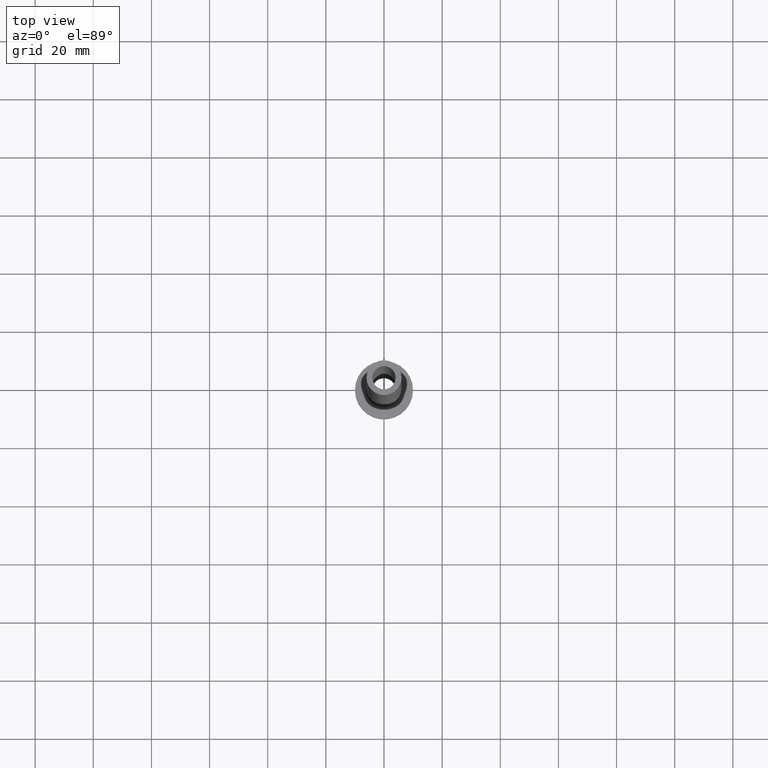
[diagram: clean part render]
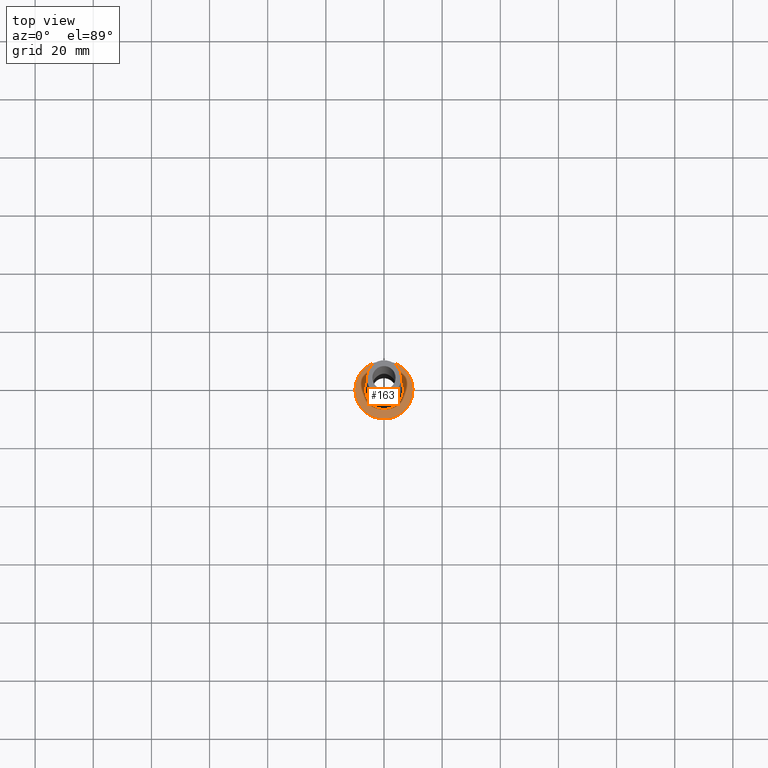
[diagram: same view with one face highlighted and labeled with its STEP entity id]
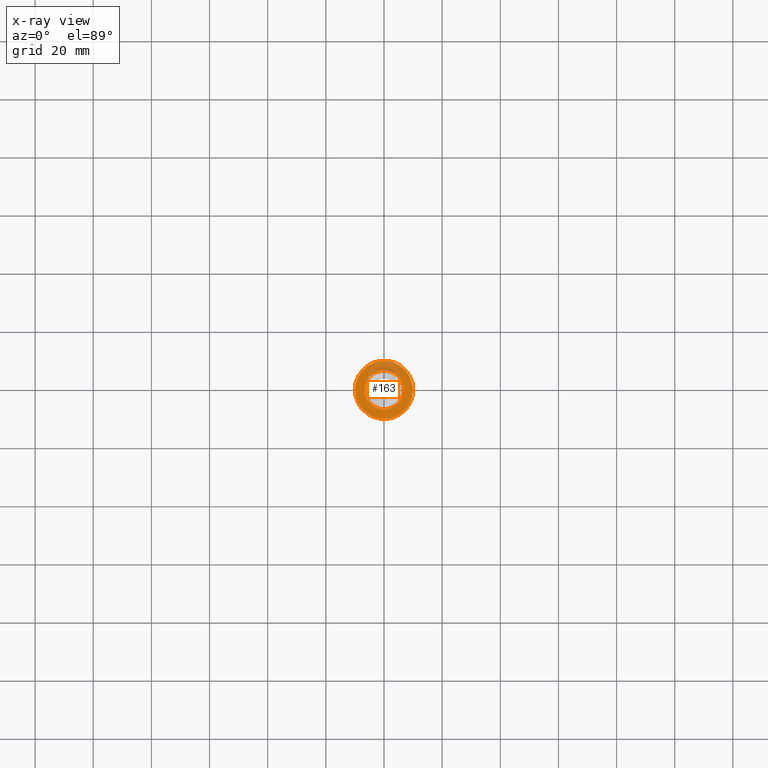
[diagram: x-ray of the same camera — body ghosted, the highlighted face saturated]
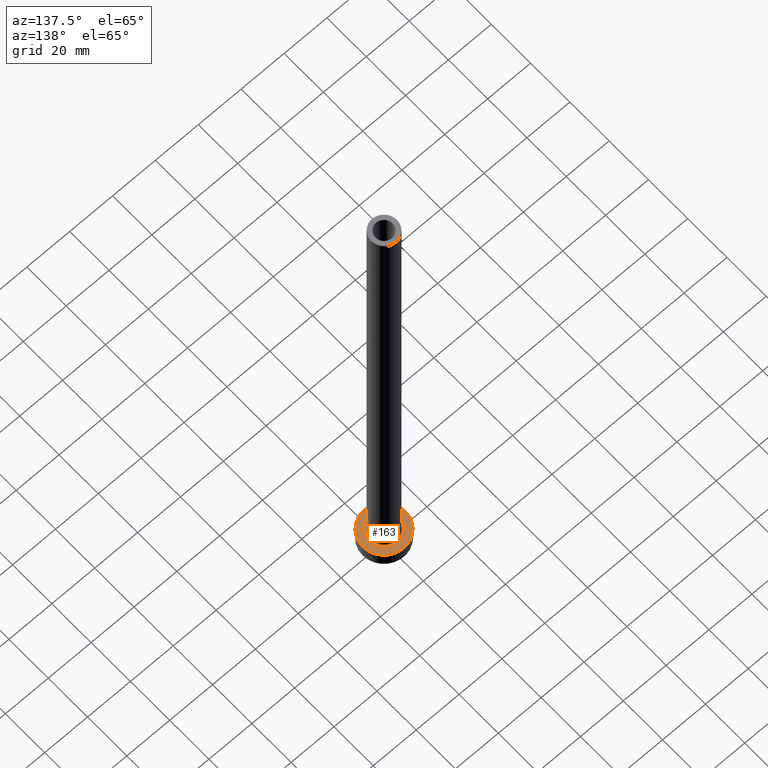
[diagram: same view with one face highlighted and labeled with its STEP entity id]
A machine part, top view. The second image highlights one B-rep face of the part: STEP entity #163.
The next image is the same camera in x-ray: the body ghosted, the highlighted face saturated — about 23% of this face is hidden behind the body in this view.
A second angle (auxiliary view) of the same face is appended — the face is thin or edge-on in the first view.
In plain terms, the highlighted planar face has unit normal (0, 0, 1).
Its self-contained STEP definition (entity closure, byte-faithful):
#13 = DIRECTION ( 'NONE',  ( 0.000000000000000000, 0.000000000000000000, 1.000000000000000000 ) ) ;
#29 = CARTESIAN_POINT ( 'NONE',  ( 10.00000000000000000, 1.224646799147353256E-15, 7.000000000000000000 ) ) ;
#31 = CIRCLE ( 'NONE', #181, 6.700000000000001066 ) ;
#42 = FACE_BOUND ( 'NONE', #49, .T. ) ;
#46 = VERTEX_POINT ( 'NONE', #103 ) ;
#49 = EDGE_LOOP ( 'NONE', ( #315, #259 ) ) ;
#50 = CARTESIAN_POINT ( 'NONE',  ( 0.000000000000000000, 0.000000000000000000, 7.000000000000000000 ) ) ;
#51 = CARTESIAN_POINT ( 'NONE',  ( 0.000000000000000000, 0.000000000000000000, 7.000000000000000000 ) ) ;
#56 = EDGE_CURVE ( 'NONE', #46, #239, #93, .T. ) ;
#86 = DIRECTION ( 'NONE',  ( 1.000000000000000000, 0.000000000000000000, 0.000000000000000000 ) ) ;
#91 = DIRECTION ( 'NONE',  ( 1.000000000000000000, 0.000000000000000000, 0.000000000000000000 ) ) ;
#93 = CIRCLE ( 'NONE', #195, 6.700000000000001066 ) ;
#103 = CARTESIAN_POINT ( 'NONE',  ( -6.700000000000001066, 8.205133554287267548E-16, 7.000000000000006217 ) ) ;
#110 = DIRECTION ( 'NONE',  ( 1.000000000000000000, 0.000000000000000000, 0.000000000000000000 ) ) ;
#119 = ORIENTED_EDGE ( 'NONE', *, *, #184, .T. ) ;
#158 = EDGE_CURVE ( 'NONE', #428, #254, #234, .T. ) ;
#160 = PLANE ( 'NONE',  #332 ) ;
#163 = ADVANCED_FACE ( 'NONE', ( #42, #330 ), #160, .T. ) ;
#181 = AXIS2_PLACEMENT_3D ( 'NONE', #50, #271, #86 ) ;
#184 = EDGE_CURVE ( 'NONE', #254, #428, #446, .T. ) ;
#191 = DIRECTION ( 'NONE',  ( 1.000000000000000000, 0.000000000000000000, -0.000000000000000000 ) ) ;
#195 = AXIS2_PLACEMENT_3D ( 'NONE', #252, #221, #110 ) ;
#200 = CARTESIAN_POINT ( 'NONE',  ( 0.000000000000000000, 0.000000000000000000, 7.000000000000000000 ) ) ;
#202 = CARTESIAN_POINT ( 'NONE',  ( 6.700000000000001066, 0.000000000000000000, 7.000000000000006217 ) ) ;
#221 = DIRECTION ( 'NONE',  ( -0.000000000000000000, -0.000000000000000000, -1.000000000000000000 ) ) ;
#228 = DIRECTION ( 'NONE',  ( 1.000000000000000000, 0.000000000000000000, 0.000000000000000000 ) ) ;
#234 = CIRCLE ( 'NONE', #346, 10.00000000000000000 ) ;
#239 = VERTEX_POINT ( 'NONE', #202 ) ;
#252 = CARTESIAN_POINT ( 'NONE',  ( 0.000000000000000000, 0.000000000000000000, 7.000000000000000000 ) ) ;
#253 = CARTESIAN_POINT ( 'NONE',  ( -10.00000000000000000, 0.000000000000000000, 7.000000000000000000 ) ) ;
#254 = VERTEX_POINT ( 'NONE', #29 ) ;
#255 = AXIS2_PLACEMENT_3D ( 'NONE', #200, #336, #91 ) ;
#259 = ORIENTED_EDGE ( 'NONE', *, *, #56, .T. ) ;
#264 = DIRECTION ( 'NONE',  ( 0.000000000000000000, 0.000000000000000000, 1.000000000000000000 ) ) ;
#271 = DIRECTION ( 'NONE',  ( -0.000000000000000000, -0.000000000000000000, -1.000000000000000000 ) ) ;
#315 = ORIENTED_EDGE ( 'NONE', *, *, #340, .T. ) ;
#330 = FACE_OUTER_BOUND ( 'NONE', #348, .T. ) ;
#332 = AXIS2_PLACEMENT_3D ( 'NONE', #51, #13, #191 ) ;
#336 = DIRECTION ( 'NONE',  ( 0.000000000000000000, 0.000000000000000000, 1.000000000000000000 ) ) ;
#340 = EDGE_CURVE ( 'NONE', #239, #46, #31, .T. ) ;
#346 = AXIS2_PLACEMENT_3D ( 'NONE', #434, #264, #228 ) ;
#348 = EDGE_LOOP ( 'NONE', ( #435, #119 ) ) ;
#428 = VERTEX_POINT ( 'NONE', #253 ) ;
#434 = CARTESIAN_POINT ( 'NONE',  ( 0.000000000000000000, 0.000000000000000000, 7.000000000000000000 ) ) ;
#435 = ORIENTED_EDGE ( 'NONE', *, *, #158, .T. ) ;
#446 = CIRCLE ( 'NONE', #255, 10.00000000000000000 ) ;